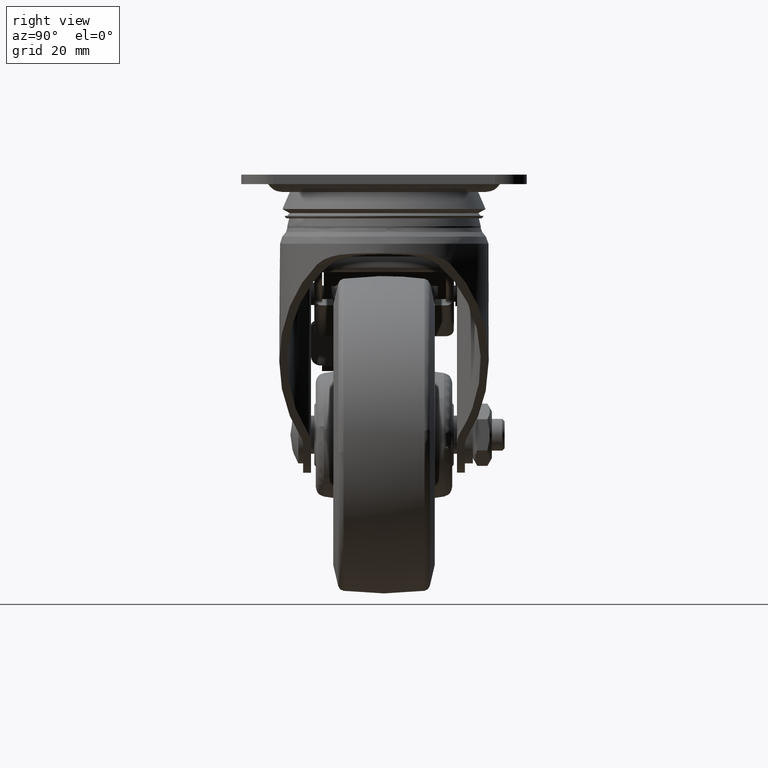
[diagram: clean part render]
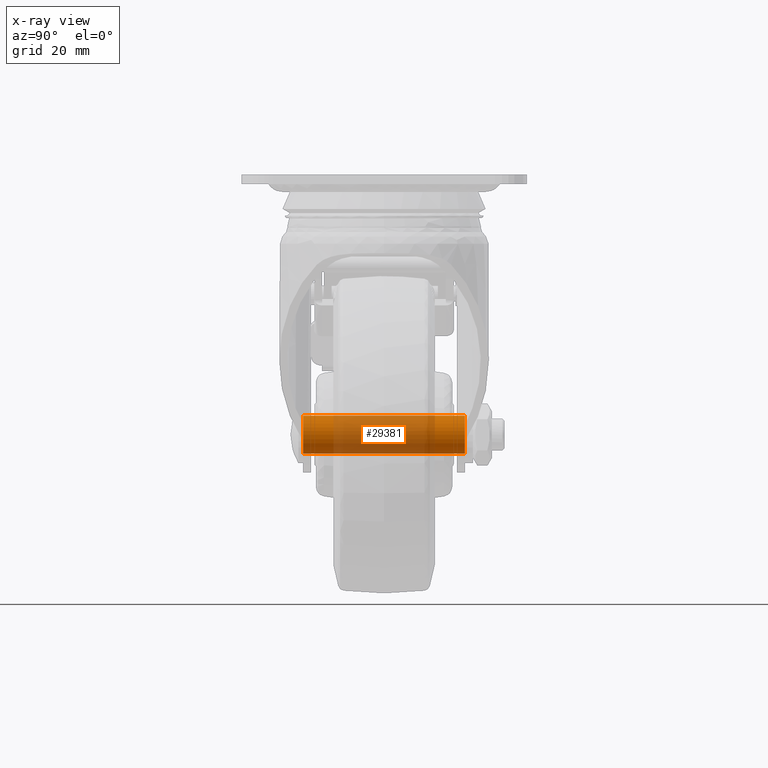
[diagram: x-ray — body ghosted, one internal face saturated and labeled with its STEP entity id]
A machine part, right view, then the same camera in x-ray: the body is ghosted and one INTERNAL B-rep face — a face not visible from any outside direction — is saturated and labeled: STEP entity #29381.
In plain terms, the highlighted face is a freeform B-spline surface patch.
Its self-contained STEP definition (entity closure, byte-faithful):
#29234=CARTESIAN_POINT('',(-39.581333857642790,-26.775000000000002,-78.125562769707756));
#29235=CARTESIAN_POINT('',(-39.470448699389095,-26.774999999999999,-77.994446962976170));
#29236=CARTESIAN_POINT('',(-39.352246226073717,-26.774999999999999,-77.869887545837386));
#29237=CARTESIAN_POINT('',(-35.222118771911198,-26.774999999999999,-73.517641319763655));
#29238=CARTESIAN_POINT('',(-30.869872545837481,-26.774999999999999,-77.647768773926174));
#29239=CARTESIAN_POINT('',(-26.517626319763750,-26.774999999999999,-81.777896228088707));
#29240=CARTESIAN_POINT('',(-30.647753773926279,-26.774999999999999,-86.130142454162424));
#29241=CARTESIAN_POINT('',(-34.777881228088802,-26.774999999999999,-90.482388680236170));
#29242=CARTESIAN_POINT('',(-39.130127454162519,-26.774999999999999,-86.352261226073637));
#29243=CARTESIAN_POINT('',(-39.581333857642790,26.806875000000005,-78.125562769707756));
#29244=CARTESIAN_POINT('',(-39.470448699389095,26.806875000000005,-77.994446962976170));
#29245=CARTESIAN_POINT('',(-39.352246226073717,26.806875000000009,-77.869887545837386));
#29246=CARTESIAN_POINT('',(-35.222118771911198,26.806875000000009,-73.517641319763655));
#29247=CARTESIAN_POINT('',(-30.869872545837481,26.806875000000009,-77.647768773926174));
#29248=CARTESIAN_POINT('',(-26.517626319763750,26.806875000000009,-81.777896228088707));
#29249=CARTESIAN_POINT('',(-30.647753773926279,26.806875000000009,-86.130142454162424));
#29250=CARTESIAN_POINT('',(-34.777881228088802,26.806875000000009,-90.482388680236170));
#29251=CARTESIAN_POINT('',(-39.130127454162519,26.806875000000009,-86.352261226073637));
#29259=(BOUNDED_SURFACE()B_SPLINE_SURFACE(2,1,((#29234,#29243),(#29235,#29244),(#29236,#29245),(#29237,#29246),(#29238,#29247),(#29239,#29248),(#29240,#29249),(#29241,#29250),(#29242,#29251)),.UNSPECIFIED.,.F.,.F.,.U.)B_SPLINE_SURFACE_WITH_KNOTS((3,2,2,2,3),(2,2),(0.0,0.397645019878172,10.338770516832451,20.279896013786718,30.221021510740989),(0.0,53.581875000000018),.UNSPECIFIED.)GEOMETRIC_REPRESENTATION_ITEM()RATIONAL_B_SPLINE_SURFACE(((0.977505800795127,0.977505800795127),(0.988284271247462,0.988284271247462),(1.0,1.0),(0.707106781186548,0.707106781186548),(1.0,1.0),(0.707106781186548,0.707106781186548),(1.0,1.0),(0.707106781186548,0.707106781186548),(1.0,1.0)))REPRESENTATION_ITEM('')SURFACE());
#29260=CARTESIAN_POINT('',(-39.581334390054067,-25.500000000000941,-78.125562547184103));
#29261=VERTEX_POINT('',#29260);
#29262=CARTESIAN_POINT('',(-35.0,-25.500000000000000,-76.000014999999891));
#29263=VERTEX_POINT('',#29262);
#29264=CARTESIAN_POINT('',(-39.581334390054067,-25.500000000000941,-78.125562547184103));
#29265=CARTESIAN_POINT('',(-39.318395086978043,-25.500000000000899,-77.814568987973061));
#29266=CARTESIAN_POINT('',(-38.709198330502538,-25.500000000000771,-77.227489221030126));
#29267=CARTESIAN_POINT('',(-37.735310355860470,-25.500000000000590,-76.621517057574280));
#29268=CARTESIAN_POINT('',(-36.493087446286502,-25.500000000000242,-76.135003105178896));
#29269=CARTESIAN_POINT('',(-35.597352575933122,-25.500000000000181,-75.999698340893744));
#29270=CARTESIAN_POINT('',(-35.0,-25.500000000000000,-76.000014999999891));
#29271=B_SPLINE_CURVE_WITH_KNOTS('',3,(#29264,#29265,#29266,#29267,#29268,#29269,#29270),.UNSPECIFIED.,.F.,.U.,(4,1,1,1,4),(0.000000069631709,1.221759823723335,2.525007954808761,3.420922139196948,5.212850172823800),.UNSPECIFIED.);
#29272=EDGE_CURVE('',#29261,#29263,#29271,.T.);
#29273=ORIENTED_EDGE('',*,*,#29272,.T.);
#29274=CARTESIAN_POINT('',(-29.000000000000419,-25.500000000000000,-82.000017231852610));
#29275=VERTEX_POINT('',#29274);
#29276=CARTESIAN_POINT('',(-35.0,-25.500000000000000,-76.000014999999891));
#29277=CARTESIAN_POINT('',(-34.386380903618871,-25.499999999999989,-75.999716100842178));
#29278=CARTESIAN_POINT('',(-33.306615480287142,-25.499999999999989,-76.167156708663626));
#29279=CARTESIAN_POINT('',(-32.022494304992648,-25.500000000000039,-76.745911538815008));
#29280=CARTESIAN_POINT('',(-31.100544050521489,-25.500000000000021,-77.403809257306847));
#29281=CARTESIAN_POINT('',(-30.316648132323991,-25.499999999999851,-78.187627792672259));
#29282=CARTESIAN_POINT('',(-29.616887776267411,-25.500000000000249,-79.234724183621893));
#29283=CARTESIAN_POINT('',(-29.118138061699749,-25.499999999999961,-80.551999695989366));
#29284=CARTESIAN_POINT('',(-28.999869476826809,-25.499999999999989,-81.509138124183664));
#29285=CARTESIAN_POINT('',(-29.000000000000419,-25.500000000000000,-82.000017231852610));
#29286=B_SPLINE_CURVE_WITH_KNOTS('',3,(#29276,#29277,#29278,#29279,#29280,#29281,#29282,#29283,#29284,#29285),.UNSPECIFIED.,.F.,.U.,(4,1,1,1,1,1,1,4),(0.000000210479891,1.840784872977271,3.239812477400129,4.197002056665363,5.227837919107742,6.553201958064993,7.952230827262039,9.424838355186155),.UNSPECIFIED.);
#29287=EDGE_CURVE('',#29263,#29275,#29286,.T.);
#29288=ORIENTED_EDGE('',*,*,#29287,.T.);
#29289=CARTESIAN_POINT('',(-35.0,-25.500000000000000,-88.000014999999905));
#29290=VERTEX_POINT('',#29289);
#29291=CARTESIAN_POINT('',(-29.000000000000419,-25.500000000000000,-82.000017231852610));
#29292=CARTESIAN_POINT('',(-28.999408555239381,-25.500000000000131,-82.711871643754861));
#29293=CARTESIAN_POINT('',(-29.212229522118889,-25.499999999999648,-83.889541542775376));
#29294=CARTESIAN_POINT('',(-29.920822959000930,-25.500000000000540,-85.275776154235174));
#29295=CARTESIAN_POINT('',(-30.603720862444259,-25.499999999999439,-86.118261650285291));
#29296=CARTESIAN_POINT('',(-31.350742169377060,-25.500000000000330,-86.795314950389951));
#29297=CARTESIAN_POINT('',(-32.280934847405952,-25.499999999999869,-87.400596823520814));
#29298=CARTESIAN_POINT('',(-33.551972361253959,-25.499999999999989,-87.881908380944907));
#29299=CARTESIAN_POINT('',(-34.509124093997997,-25.499999999999950,-88.000129638036370));
#29300=CARTESIAN_POINT('',(-35.0,-25.500000000000000,-88.000014999999905));
#29301=B_SPLINE_CURVE_WITH_KNOTS('',3,(#29291,#29292,#29293,#29294,#29295,#29296,#29297,#29298,#29299,#29300),.UNSPECIFIED.,.F.,.U.,(4,1,1,1,1,1,1,4),(0.000000211249908,2.135309384560818,3.534326703305653,4.638850542059479,5.375077189894112,6.553200207677219,7.952228703465242,9.424835839352372),.UNSPECIFIED.);
#29302=EDGE_CURVE('',#29275,#29290,#29301,.T.);
#29303=ORIENTED_EDGE('',*,*,#29302,.T.);
#29304=CARTESIAN_POINT('',(-39.130126948397141,-25.499999999999229,-86.352260937874007));
#29305=VERTEX_POINT('',#29304);
#29306=CARTESIAN_POINT('',(-35.0,-25.500000000000000,-88.000014999999905));
#29307=CARTESIAN_POINT('',(-35.711872301024158,-25.499999999999801,-88.000627387034299));
#29308=CARTESIAN_POINT('',(-36.779083207389142,-25.499999999999758,-87.807684669381970));
#29309=CARTESIAN_POINT('',(-38.155137453183649,-25.499999999999300,-87.151527899301072));
#29310=CARTESIAN_POINT('',(-38.803195100119908,-25.499999999999350,-86.662632914681325));
#29311=CARTESIAN_POINT('',(-39.130126948397141,-25.499999999999229,-86.352260937874007));
#29312=B_SPLINE_CURVE_WITH_KNOTS('',3,(#29306,#29307,#29308,#29309,#29310,#29311),.UNSPECIFIED.,.F.,.U.,(4,1,1,4),(0.000000045522590,2.135325767263521,3.202965590399509,4.555335676650235),.UNSPECIFIED.);
#29313=EDGE_CURVE('',#29290,#29305,#29312,.T.);
#29314=ORIENTED_EDGE('',*,*,#29313,.T.);
#29315=CARTESIAN_POINT('',(-39.130126949836551,25.500000000000000,-86.352260936508060));
#29316=VERTEX_POINT('',#29315);
#29317=CARTESIAN_POINT('',(-39.130126948397141,-25.499999999999229,-86.352260937874007));
#29318=CARTESIAN_POINT('',(-39.130126949836551,25.500000000000000,-86.352260936508060));
#29319=QUASI_UNIFORM_CURVE('',1,(#29317,#29318),.UNSPECIFIED.,.F.,.U.);
#29320=EDGE_CURVE('',#29305,#29316,#29319,.T.);
#29321=ORIENTED_EDGE('',*,*,#29320,.T.);
#29322=CARTESIAN_POINT('',(-35.0,25.500000000000000,-88.000014999999905));
#29323=VERTEX_POINT('',#29322);
#29324=CARTESIAN_POINT('',(-35.0,25.500000000000000,-88.000014999999905));
#29325=CARTESIAN_POINT('',(-35.450793082150753,25.499999999999961,-88.000095872638255));
#29326=CARTESIAN_POINT('',(-36.352323202194462,25.500000000000139,-87.897938439654055));
#29327=CARTESIAN_POINT('',(-37.793961805281000,25.499999999999790,-87.391192484627297));
#29328=CARTESIAN_POINT('',(-38.682854046965247,25.500000000000231,-86.777133032122933));
#29329=CARTESIAN_POINT('',(-39.130126949836551,25.500000000000000,-86.352260936508060));
#29330=B_SPLINE_CURVE_WITH_KNOTS('',3,(#29324,#29325,#29326,#29327,#29328,#29329),.UNSPECIFIED.,.F.,.U.,(4,1,1,4),(0.000000045513087,1.352370132406678,2.704712037734447,4.555335678634723),.UNSPECIFIED.);
#29331=EDGE_CURVE('',#29323,#29316,#29330,.T.);
#29332=ORIENTED_EDGE('',*,*,#29331,.F.);
#29333=CARTESIAN_POINT('',(-29.000000000000419,25.500000000000000,-82.000017231852610));
#29334=VERTEX_POINT('',#29333);
#29335=CARTESIAN_POINT('',(-29.000000000000419,25.500000000000000,-82.000017231852610));
#29336=CARTESIAN_POINT('',(-28.999408555239381,25.500000000000131,-82.711871643754861));
#29337=CARTESIAN_POINT('',(-29.212229522118889,25.499999999999648,-83.889541542775376));
#29338=CARTESIAN_POINT('',(-29.920822959000930,25.500000000000540,-85.275776154235174));
#29339=CARTESIAN_POINT('',(-30.603720862444259,25.499999999999439,-86.118261650285291));
#29340=CARTESIAN_POINT('',(-31.350742169377060,25.500000000000330,-86.795314950389951));
#29341=CARTESIAN_POINT('',(-32.280934847405952,25.499999999999869,-87.400596823520814));
#29342=CARTESIAN_POINT('',(-33.551972361253959,25.499999999999989,-87.881908380944907));
#29343=CARTESIAN_POINT('',(-34.509124093997997,25.499999999999950,-88.000129638036370));
#29344=CARTESIAN_POINT('',(-35.0,25.500000000000000,-88.000014999999905));
#29345=B_SPLINE_CURVE_WITH_KNOTS('',3,(#29335,#29336,#29337,#29338,#29339,#29340,#29341,#29342,#29343,#29344),.UNSPECIFIED.,.F.,.U.,(4,1,1,1,1,1,1,4),(0.000000211249908,2.135309384560818,3.534326703305653,4.638850542059479,5.375077189894112,6.553200207677219,7.952228703465242,9.424835839352372),.UNSPECIFIED.);
#29346=EDGE_CURVE('',#29334,#29323,#29345,.T.);
#29347=ORIENTED_EDGE('',*,*,#29346,.F.);
#29348=CARTESIAN_POINT('',(-35.0,25.500000000000000,-76.000014999999891));
#29349=VERTEX_POINT('',#29348);
#29350=CARTESIAN_POINT('',(-35.0,25.500000000000000,-76.000014999999891));
#29351=CARTESIAN_POINT('',(-34.386380903618871,25.499999999999989,-75.999716100842178));
#29352=CARTESIAN_POINT('',(-33.306615480287142,25.499999999999989,-76.167156708663626));
#29353=CARTESIAN_POINT('',(-32.022494304992648,25.500000000000039,-76.745911538815008));
#29354=CARTESIAN_POINT('',(-31.100544050521489,25.500000000000021,-77.403809257306847));
#29355=CARTESIAN_POINT('',(-30.316648132323991,25.499999999999851,-78.187627792672259));
#29356=CARTESIAN_POINT('',(-29.616887776267411,25.500000000000249,-79.234724183621893));
#29357=CARTESIAN_POINT('',(-29.118138061699749,25.499999999999961,-80.551999695989366));
#29358=CARTESIAN_POINT('',(-28.999869476826809,25.499999999999989,-81.509138124183664));
#29359=CARTESIAN_POINT('',(-29.000000000000419,25.500000000000000,-82.000017231852610));
#29360=B_SPLINE_CURVE_WITH_KNOTS('',3,(#29350,#29351,#29352,#29353,#29354,#29355,#29356,#29357,#29358,#29359),.UNSPECIFIED.,.F.,.U.,(4,1,1,1,1,1,1,4),(0.000000210479891,1.840784872977271,3.239812477400129,4.197002056665363,5.227837919107742,6.553201958064993,7.952230827262039,9.424838355186155),.UNSPECIFIED.);
#29361=EDGE_CURVE('',#29349,#29334,#29360,.T.);
#29362=ORIENTED_EDGE('',*,*,#29361,.F.);
#29363=CARTESIAN_POINT('',(-39.581334388676233,25.500000000000000,-78.125562545554871));
#29364=VERTEX_POINT('',#29363);
#29365=CARTESIAN_POINT('',(-39.581334388676233,25.500000000000000,-78.125562545554871));
#29366=CARTESIAN_POINT('',(-39.160830876216657,25.499999999999961,-77.627752686820344));
#29367=CARTESIAN_POINT('',(-38.281077299513612,25.500000000000028,-76.878676045690668));
#29368=CARTESIAN_POINT('',(-36.683190324284887,25.499999999999979,-76.163543440131832));
#29369=CARTESIAN_POINT('',(-35.597323567407877,25.500000000000011,-75.999765039911011));
#29370=CARTESIAN_POINT('',(-35.0,25.500000000000000,-76.000014999999891));
#29371=B_SPLINE_CURVE_WITH_KNOTS('',3,(#29365,#29366,#29367,#29368,#29369,#29370),.UNSPECIFIED.,.F.,.U.,(4,1,1,4),(0.000000069623110,1.954819982161794,3.420922137795815,5.212850170690012),.UNSPECIFIED.);
#29372=EDGE_CURVE('',#29364,#29349,#29371,.T.);
#29373=ORIENTED_EDGE('',*,*,#29372,.F.);
#29374=CARTESIAN_POINT('',(-39.581334390054067,-25.500000000000941,-78.125562547184103));
#29375=CARTESIAN_POINT('',(-39.581334388676233,25.500000000000000,-78.125562545554871));
#29376=QUASI_UNIFORM_CURVE('',1,(#29374,#29375),.UNSPECIFIED.,.F.,.U.);
#29377=EDGE_CURVE('',#29261,#29364,#29376,.T.);
#29378=ORIENTED_EDGE('',*,*,#29377,.F.);
#29379=EDGE_LOOP('',(#29273,#29288,#29303,#29314,#29321,#29332,#29347,#29362,#29373,#29378));
#29380=FACE_OUTER_BOUND('',#29379,.T.);
#29381=ADVANCED_FACE('',(#29380),#29259,.T.);